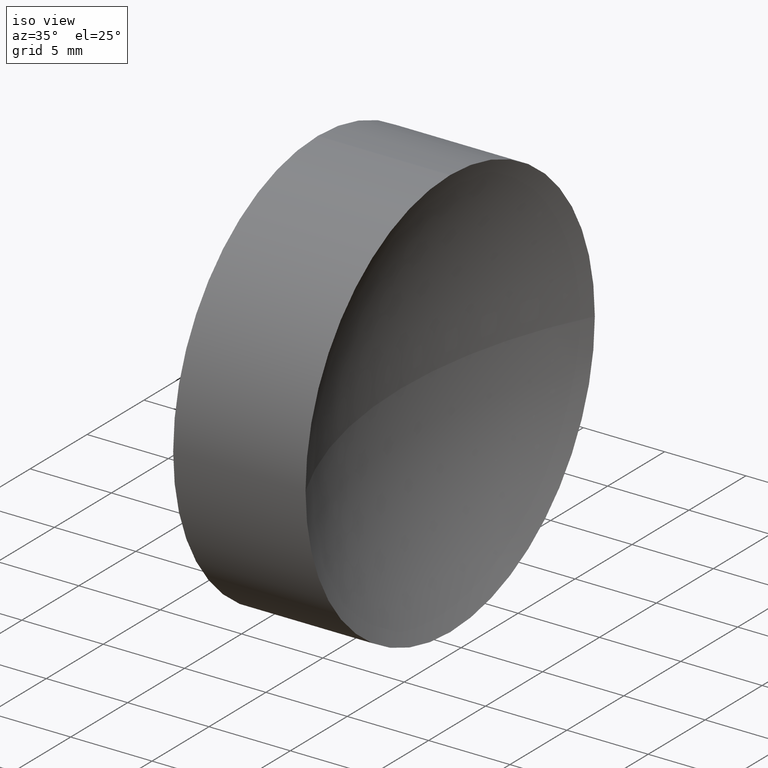
[diagram: clean part render]
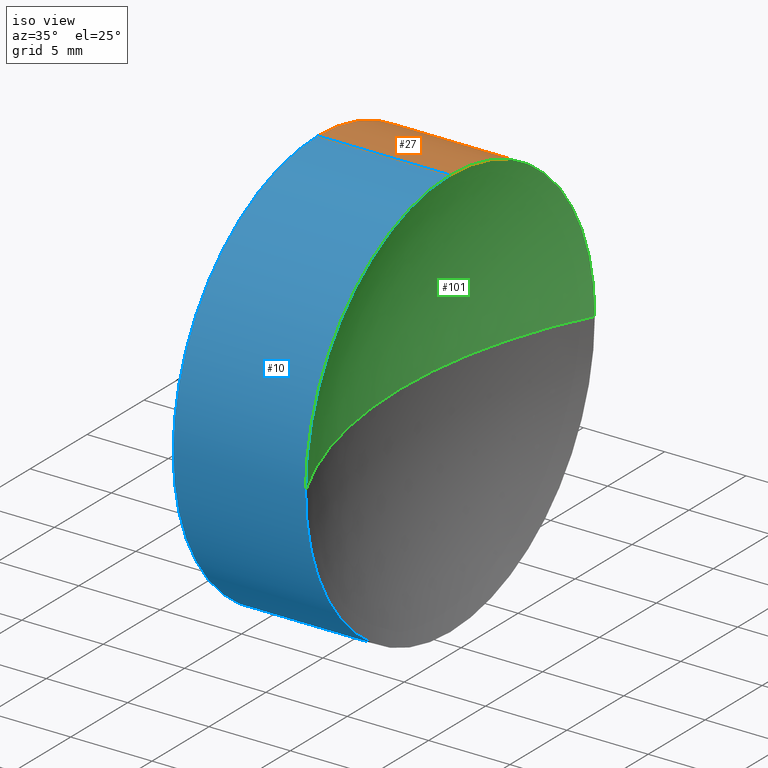
[diagram: same view with three faces highlighted in distinct colors, each labeled with its STEP entity id]
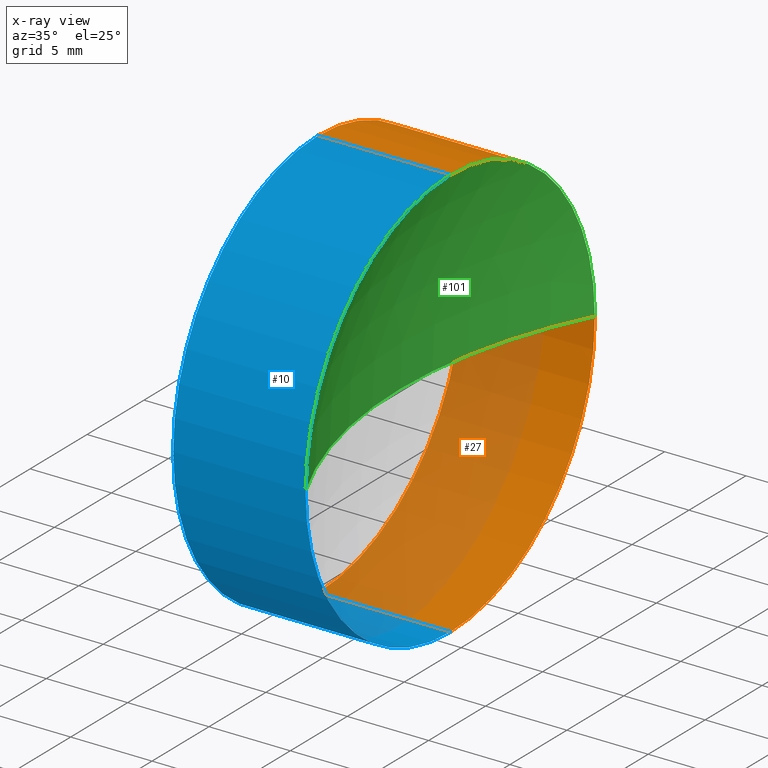
[diagram: x-ray of the same camera — body ghosted, the three highlighted faces saturated]
A machine part, iso view with three faces highlighted in distinct colors.
The next image is the same camera in x-ray (body ghosted, the three faces saturated) — at least one of them is partly hidden behind the body in this view.
Their STEP definitions:

[orange] entity #27 — the highlighted cylindrical surface (partial cylindrical patch) has radius 12.7 mm, axis along (-1, -0, -0).
#2 = VECTOR ( 'NONE', #51, 1000.000000000000000 ) ;
#3 = CARTESIAN_POINT ( 'NONE',  ( 124.1706853466884300, 65.22260287298739500, 12.70000000000000100 ) ) ;
#4 = CARTESIAN_POINT ( 'NONE',  ( 112.2414632947874400, 65.22260287298739500, 0.0000000000000000000 ) ) ;
#16 = ORIENTED_EDGE ( 'NONE', *, *, #89, .F. ) ;
#17 = VECTOR ( 'NONE', #224, 1000.000000000000000 ) ;
#19 = CIRCLE ( 'NONE', #28, 12.70000000000000300 ) ;
#20 = CARTESIAN_POINT ( 'NONE',  ( 124.1706853466884300, 65.22260287298739500, 0.0000000000000000000 ) ) ;
#24 = CARTESIAN_POINT ( 'NONE',  ( 124.1706853466884300, 65.22260287298739500, -12.70000000000000100 ) ) ;
#27 = ADVANCED_FACE ( 'NONE', ( #157 ), #98, .T. ) ;
#28 = AXIS2_PLACEMENT_3D ( 'NONE', #178, #132, #73 ) ;
#33 = ORIENTED_EDGE ( 'NONE', *, *, #96, .T. ) ;
#38 = DIRECTION ( 'NONE',  ( -1.000000000000000000, -0.0000000000000000000, -0.0000000000000000000 ) ) ;
#40 = CARTESIAN_POINT ( 'NONE',  ( 124.1706853466884300, 65.22260287298739500, 0.0000000000000000000 ) ) ;
#48 = VERTEX_POINT ( 'NONE', #3 ) ;
#51 = DIRECTION ( 'NONE',  ( -1.000000000000000000, -0.0000000000000000000, -0.0000000000000000000 ) ) ;
#55 = EDGE_CURVE ( 'NONE', #105, #197, #139, .T. ) ;
#58 = CARTESIAN_POINT ( 'NONE',  ( 116.0347215457702200, 65.22260287298739500, 12.70000000000000300 ) ) ;
#60 = CARTESIAN_POINT ( 'NONE',  ( 124.1706853466884300, 77.92260287298739700, 0.0000000000000000000 ) ) ;
#73 = DIRECTION ( 'NONE',  ( 0.0000000000000000000, 0.0000000000000000000, 1.000000000000000000 ) ) ;
#83 = DIRECTION ( 'NONE',  ( -1.000000000000000000, -0.0000000000000000000, -0.0000000000000000000 ) ) ;
#88 = ORIENTED_EDGE ( 'NONE', *, *, #201, .T. ) ;
#89 = EDGE_CURVE ( 'NONE', #184, #110, #19, .T. ) ;
#90 = AXIS2_PLACEMENT_3D ( 'NONE', #4, #180, #198 ) ;
#91 = CIRCLE ( 'NONE', #189, 12.70000000000000300 ) ;
#94 = AXIS2_PLACEMENT_3D ( 'NONE', #20, #38, #219 ) ;
#96 = EDGE_CURVE ( 'NONE', #197, #110, #208, .T. ) ;
#98 = CYLINDRICAL_SURFACE ( 'NONE', #90, 12.69999999999999600 ) ;
#100 = CARTESIAN_POINT ( 'NONE',  ( 116.0347215457702200, 65.22260287298739500, -12.70000000000000100 ) ) ;
#104 = DIRECTION ( 'NONE',  ( 0.0000000000000000000, 0.0000000000000000000, 1.000000000000000000 ) ) ;
#105 = VERTEX_POINT ( 'NONE', #60 ) ;
#106 = CARTESIAN_POINT ( 'NONE',  ( 116.0347215457702200, 77.92260287298738300, 0.0000000000000000000 ) ) ;
#110 = VERTEX_POINT ( 'NONE', #100 ) ;
#114 = LINE ( 'NONE', #222, #17 ) ;
#116 = DIRECTION ( 'NONE',  ( -1.000000000000000000, -0.0000000000000000000, -0.0000000000000000000 ) ) ;
#117 = DIRECTION ( 'NONE',  ( 0.0000000000000000000, 0.0000000000000000000, 1.000000000000000000 ) ) ;
#127 = CIRCLE ( 'NONE', #141, 12.70000000000000300 ) ;
#132 = DIRECTION ( 'NONE',  ( -1.000000000000000000, -0.0000000000000000000, -0.0000000000000000000 ) ) ;
#136 = VERTEX_POINT ( 'NONE', #58 ) ;
#139 = CIRCLE ( 'NONE', #94, 12.70000000000000300 ) ;
#141 = AXIS2_PLACEMENT_3D ( 'NONE', #220, #116, #117 ) ;
#154 = EDGE_CURVE ( 'NONE', #48, #136, #114, .T. ) ;
#157 = FACE_OUTER_BOUND ( 'NONE', #214, .T. ) ;
#160 = CARTESIAN_POINT ( 'NONE',  ( 112.2414632947874400, 65.22260287298739500, -12.69999999999999600 ) ) ;
#164 = ORIENTED_EDGE ( 'NONE', *, *, #211, .F. ) ;
#167 = ORIENTED_EDGE ( 'NONE', *, *, #55, .T. ) ;
#174 = ORIENTED_EDGE ( 'NONE', *, *, #154, .F. ) ;
#178 = CARTESIAN_POINT ( 'NONE',  ( 116.0347215457702200, 65.22260287298739500, 0.0000000000000000000 ) ) ;
#180 = DIRECTION ( 'NONE',  ( -1.000000000000000000, -0.0000000000000000000, -0.0000000000000000000 ) ) ;
#184 = VERTEX_POINT ( 'NONE', #106 ) ;
#189 = AXIS2_PLACEMENT_3D ( 'NONE', #40, #83, #104 ) ;
#197 = VERTEX_POINT ( 'NONE', #24 ) ;
#198 = DIRECTION ( 'NONE',  ( 0.0000000000000000000, 0.0000000000000000000, 1.000000000000000000 ) ) ;
#201 = EDGE_CURVE ( 'NONE', #48, #105, #91, .T. ) ;
#208 = LINE ( 'NONE', #160, #2 ) ;
#211 = EDGE_CURVE ( 'NONE', #136, #184, #127, .T. ) ;
#214 = EDGE_LOOP ( 'NONE', ( #167, #33, #16, #164, #174, #88 ) ) ;
#219 = DIRECTION ( 'NONE',  ( 0.0000000000000000000, 0.0000000000000000000, 1.000000000000000000 ) ) ;
#220 = CARTESIAN_POINT ( 'NONE',  ( 116.0347215457702200, 65.22260287298739500, 0.0000000000000000000 ) ) ;
#222 = CARTESIAN_POINT ( 'NONE',  ( 112.2414632947874400, 65.22260287298739500, 12.69999999999999600 ) ) ;
#224 = DIRECTION ( 'NONE',  ( -1.000000000000000000, -0.0000000000000000000, -0.0000000000000000000 ) ) ;

[blue] entity #10 — the highlighted cylindrical surface (partial cylindrical patch) has radius 12.7 mm, axis along (-1, -0, -0).
#1 = DIRECTION ( 'NONE',  ( 0.0000000000000000000, 0.0000000000000000000, 1.000000000000000000 ) ) ;
#2 = VECTOR ( 'NONE', #51, 1000.000000000000000 ) ;
#3 = CARTESIAN_POINT ( 'NONE',  ( 124.1706853466884300, 65.22260287298739500, 12.70000000000000100 ) ) ;
#5 = CIRCLE ( 'NONE', #66, 12.70000000000000300 ) ;
#6 = DIRECTION ( 'NONE',  ( -1.000000000000000000, -0.0000000000000000000, -0.0000000000000000000 ) ) ;
#10 = ADVANCED_FACE ( 'NONE', ( #196 ), #47, .T. ) ;
#11 = EDGE_CURVE ( 'NONE', #197, #229, #186, .T. ) ;
#17 = VECTOR ( 'NONE', #224, 1000.000000000000000 ) ;
#18 = CARTESIAN_POINT ( 'NONE',  ( 116.0347215457702200, 65.22260287298739500, 0.0000000000000000000 ) ) ;
#23 = CARTESIAN_POINT ( 'NONE',  ( 124.1706853466884300, 52.52260287298737800, -1.555301434917138400E-015 ) ) ;
#24 = CARTESIAN_POINT ( 'NONE',  ( 124.1706853466884300, 65.22260287298739500, -12.70000000000000100 ) ) ;
#26 = ORIENTED_EDGE ( 'NONE', *, *, #11, .T. ) ;
#35 = ORIENTED_EDGE ( 'NONE', *, *, #70, .F. ) ;
#41 = CARTESIAN_POINT ( 'NONE',  ( 124.1706853466884300, 65.22260287298739500, 0.0000000000000000000 ) ) ;
#47 = CYLINDRICAL_SURFACE ( 'NONE', #175, 12.69999999999999600 ) ;
#48 = VERTEX_POINT ( 'NONE', #3 ) ;
#49 = CIRCLE ( 'NONE', #112, 12.70000000000000300 ) ;
#51 = DIRECTION ( 'NONE',  ( -1.000000000000000000, -0.0000000000000000000, -0.0000000000000000000 ) ) ;
#54 = DIRECTION ( 'NONE',  ( -1.000000000000000000, -0.0000000000000000000, -0.0000000000000000000 ) ) ;
#58 = CARTESIAN_POINT ( 'NONE',  ( 116.0347215457702200, 65.22260287298739500, 12.70000000000000300 ) ) ;
#66 = AXIS2_PLACEMENT_3D ( 'NONE', #41, #165, #121 ) ;
#70 = EDGE_CURVE ( 'NONE', #110, #172, #49, .T. ) ;
#75 = CARTESIAN_POINT ( 'NONE',  ( 112.2414632947874400, 65.22260287298739500, 0.0000000000000000000 ) ) ;
#77 = DIRECTION ( 'NONE',  ( -1.000000000000000000, -0.0000000000000000000, -0.0000000000000000000 ) ) ;
#80 = DIRECTION ( 'NONE',  ( 0.0000000000000000000, 0.0000000000000000000, 1.000000000000000000 ) ) ;
#82 = ORIENTED_EDGE ( 'NONE', *, *, #96, .F. ) ;
#93 = DIRECTION ( 'NONE',  ( 0.0000000000000000000, 0.0000000000000000000, 1.000000000000000000 ) ) ;
#96 = EDGE_CURVE ( 'NONE', #197, #110, #208, .T. ) ;
#100 = CARTESIAN_POINT ( 'NONE',  ( 116.0347215457702200, 65.22260287298739500, -12.70000000000000100 ) ) ;
#103 = ORIENTED_EDGE ( 'NONE', *, *, #218, .T. ) ;
#110 = VERTEX_POINT ( 'NONE', #100 ) ;
#112 = AXIS2_PLACEMENT_3D ( 'NONE', #18, #54, #200 ) ;
#114 = LINE ( 'NONE', #222, #17 ) ;
#120 = CARTESIAN_POINT ( 'NONE',  ( 116.0347215457702200, 52.52260287298737800, -1.555301434917137800E-015 ) ) ;
#121 = DIRECTION ( 'NONE',  ( 0.0000000000000000000, 0.0000000000000000000, 1.000000000000000000 ) ) ;
#123 = AXIS2_PLACEMENT_3D ( 'NONE', #181, #77, #1 ) ;
#135 = CARTESIAN_POINT ( 'NONE',  ( 116.0347215457702200, 65.22260287298739500, 0.0000000000000000000 ) ) ;
#136 = VERTEX_POINT ( 'NONE', #58 ) ;
#143 = ORIENTED_EDGE ( 'NONE', *, *, #154, .T. ) ;
#154 = EDGE_CURVE ( 'NONE', #48, #136, #114, .T. ) ;
#160 = CARTESIAN_POINT ( 'NONE',  ( 112.2414632947874400, 65.22260287298739500, -12.69999999999999600 ) ) ;
#163 = CIRCLE ( 'NONE', #206, 12.70000000000000300 ) ;
#165 = DIRECTION ( 'NONE',  ( -1.000000000000000000, -0.0000000000000000000, -0.0000000000000000000 ) ) ;
#172 = VERTEX_POINT ( 'NONE', #120 ) ;
#175 = AXIS2_PLACEMENT_3D ( 'NONE', #75, #217, #93 ) ;
#181 = CARTESIAN_POINT ( 'NONE',  ( 124.1706853466884300, 65.22260287298739500, 0.0000000000000000000 ) ) ;
#186 = CIRCLE ( 'NONE', #123, 12.70000000000000300 ) ;
#187 = ORIENTED_EDGE ( 'NONE', *, *, #193, .F. ) ;
#192 = EDGE_LOOP ( 'NONE', ( #82, #26, #103, #143, #187, #35 ) ) ;
#193 = EDGE_CURVE ( 'NONE', #172, #136, #163, .T. ) ;
#196 = FACE_OUTER_BOUND ( 'NONE', #192, .T. ) ;
#197 = VERTEX_POINT ( 'NONE', #24 ) ;
#200 = DIRECTION ( 'NONE',  ( 0.0000000000000000000, 0.0000000000000000000, 1.000000000000000000 ) ) ;
#206 = AXIS2_PLACEMENT_3D ( 'NONE', #135, #6, #80 ) ;
#208 = LINE ( 'NONE', #160, #2 ) ;
#217 = DIRECTION ( 'NONE',  ( -1.000000000000000000, -0.0000000000000000000, -0.0000000000000000000 ) ) ;
#218 = EDGE_CURVE ( 'NONE', #229, #48, #5, .T. ) ;
#222 = CARTESIAN_POINT ( 'NONE',  ( 112.2414632947874400, 65.22260287298739500, 12.69999999999999600 ) ) ;
#224 = DIRECTION ( 'NONE',  ( -1.000000000000000000, -0.0000000000000000000, -0.0000000000000000000 ) ) ;
#229 = VERTEX_POINT ( 'NONE', #23 ) ;

[green] entity #101 — the highlighted spherical surface has radius 27.82 mm.
#3 = CARTESIAN_POINT ( 'NONE',  ( 124.1706853466884300, 65.22260287298739500, 12.70000000000000100 ) ) ;
#5 = CIRCLE ( 'NONE', #66, 12.70000000000000300 ) ;
#8 = DIRECTION ( 'NONE',  ( 0.0000000000000000000, 1.000000000000000000, 1.224646799147353000E-016 ) ) ;
#22 = CIRCLE ( 'NONE', #195, 27.82000000000001100 ) ;
#23 = CARTESIAN_POINT ( 'NONE',  ( 124.1706853466884300, 52.52260287298737800, -1.555301434917138400E-015 ) ) ;
#37 = ORIENTED_EDGE ( 'NONE', *, *, #218, .F. ) ;
#39 = AXIS2_PLACEMENT_3D ( 'NONE', #223, #182, #8 ) ;
#40 = CARTESIAN_POINT ( 'NONE',  ( 124.1706853466884300, 65.22260287298739500, 0.0000000000000000000 ) ) ;
#41 = CARTESIAN_POINT ( 'NONE',  ( 124.1706853466884300, 65.22260287298739500, 0.0000000000000000000 ) ) ;
#46 = EDGE_CURVE ( 'NONE', #105, #69, #22, .T. ) ;
#48 = VERTEX_POINT ( 'NONE', #3 ) ;
#50 = ORIENTED_EDGE ( 'NONE', *, *, #46, .F. ) ;
#53 = CARTESIAN_POINT ( 'NONE',  ( 148.9227034462293200, 65.22260287298738000, 0.0000000000000000000 ) ) ;
#57 = CARTESIAN_POINT ( 'NONE',  ( 148.9227034462293200, 65.22260287298738000, 0.0000000000000000000 ) ) ;
#60 = CARTESIAN_POINT ( 'NONE',  ( 124.1706853466884300, 77.92260287298739700, 0.0000000000000000000 ) ) ;
#66 = AXIS2_PLACEMENT_3D ( 'NONE', #41, #165, #121 ) ;
#69 = VERTEX_POINT ( 'NONE', #161 ) ;
#83 = DIRECTION ( 'NONE',  ( -1.000000000000000000, -0.0000000000000000000, -0.0000000000000000000 ) ) ;
#91 = CIRCLE ( 'NONE', #189, 12.70000000000000300 ) ;
#92 = FACE_OUTER_BOUND ( 'NONE', #190, .T. ) ;
#101 = ADVANCED_FACE ( 'NONE', ( #92 ), #155, .F. ) ;
#104 = DIRECTION ( 'NONE',  ( 0.0000000000000000000, 0.0000000000000000000, 1.000000000000000000 ) ) ;
#105 = VERTEX_POINT ( 'NONE', #60 ) ;
#121 = DIRECTION ( 'NONE',  ( 0.0000000000000000000, 0.0000000000000000000, 1.000000000000000000 ) ) ;
#122 = DIRECTION ( 'NONE',  ( 0.0000000000000000000, 1.000000000000000000, 0.0000000000000000000 ) ) ;
#137 = EDGE_CURVE ( 'NONE', #229, #69, #191, .T. ) ;
#144 = DIRECTION ( 'NONE',  ( 0.0000000000000000000, 0.0000000000000000000, 1.000000000000000000 ) ) ;
#155 = SPHERICAL_SURFACE ( 'NONE', #232, 27.82000000000000700 ) ;
#161 = CARTESIAN_POINT ( 'NONE',  ( 121.1027034462293100, 65.22260287298738000, 0.0000000000000000000 ) ) ;
#165 = DIRECTION ( 'NONE',  ( -1.000000000000000000, -0.0000000000000000000, -0.0000000000000000000 ) ) ;
#170 = ORIENTED_EDGE ( 'NONE', *, *, #137, .T. ) ;
#177 = DIRECTION ( 'NONE',  ( 1.000000000000000000, 0.0000000000000000000, 0.0000000000000000000 ) ) ;
#179 = ORIENTED_EDGE ( 'NONE', *, *, #201, .F. ) ;
#182 = DIRECTION ( 'NONE',  ( 0.0000000000000000000, 1.224646799147353200E-016, -1.000000000000000000 ) ) ;
#189 = AXIS2_PLACEMENT_3D ( 'NONE', #40, #83, #104 ) ;
#190 = EDGE_LOOP ( 'NONE', ( #37, #170, #50, #179 ) ) ;
#191 = CIRCLE ( 'NONE', #39, 27.82000000000001100 ) ;
#195 = AXIS2_PLACEMENT_3D ( 'NONE', #53, #144, #177 ) ;
#199 = DIRECTION ( 'NONE',  ( 0.0000000000000000000, 0.0000000000000000000, -1.000000000000000000 ) ) ;
#201 = EDGE_CURVE ( 'NONE', #48, #105, #91, .T. ) ;
#218 = EDGE_CURVE ( 'NONE', #229, #48, #5, .T. ) ;
#223 = CARTESIAN_POINT ( 'NONE',  ( 148.9227034462293200, 65.22260287298738000, 0.0000000000000000000 ) ) ;
#229 = VERTEX_POINT ( 'NONE', #23 ) ;
#232 = AXIS2_PLACEMENT_3D ( 'NONE', #57, #199, #122 ) ;